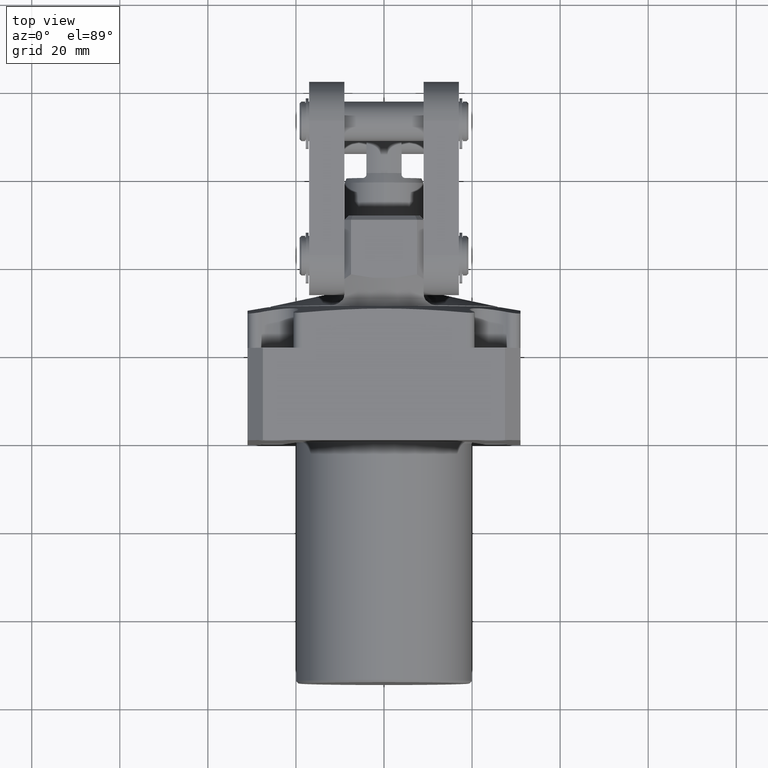
[diagram: clean part render]
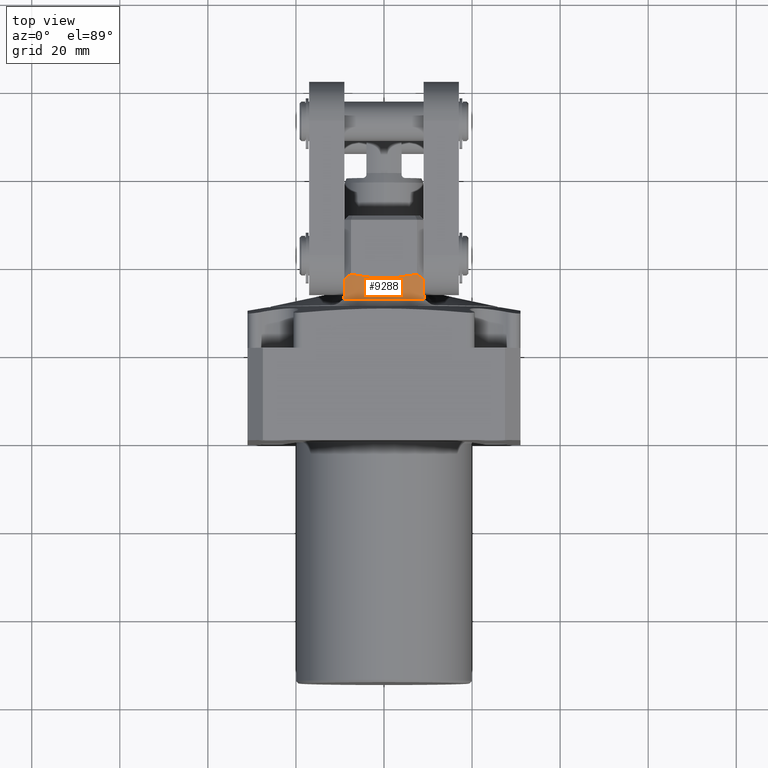
[diagram: same view with one face highlighted and labeled with its STEP entity id]
A machine part, top view. The second image highlights one B-rep face of the part: STEP entity #9288.
In plain terms, the highlighted conical surface has half-angle 45 deg.
Its self-contained STEP definition (entity closure, byte-faithful):
#5057=CARTESIAN_POINT('',(3.544999999370E-1,4.871455193238E-1,
1.029903618183E0));
#5058=CARTESIAN_POINT('',(3.544999999370E-1,5.004723802631E-1,
1.043997858545E0));
#5059=CARTESIAN_POINT('',(3.545000000294E-1,5.275508198743E-1,
1.072574211842E0));
#5060=CARTESIAN_POINT('',(3.544999999916E-1,5.694333499465E-1,
1.116597697178E0));
#5061=CARTESIAN_POINT('',(3.545E-1,5.982100944324E-1,1.146735039526E0));
#5062=CARTESIAN_POINT('',(3.545E-1,6.128107127910E-1,1.162E0));
#5294=CARTESIAN_POINT('',(-3.545E-1,6.128107127910E-1,1.162E0));
#5295=CARTESIAN_POINT('',(-3.545E-1,5.982102104873E-1,1.146735160862E0));
#5296=CARTESIAN_POINT('',(-3.544999999901E-1,5.694336207894E-1,
1.116597981134E0));
#5297=CARTESIAN_POINT('',(-3.545000000347E-1,5.275511275940E-1,
1.072574536047E0));
#5298=CARTESIAN_POINT('',(-3.544999999257E-1,5.004725120770E-1,
1.043997997952E0));
#5299=CARTESIAN_POINT('',(-3.544999999257E-1,4.871455193326E-1,
1.029903618195E0));
#5378=CARTESIAN_POINT('',(-3.555341961909E-1,4.736282998827E-1,
1.015235817623E0));
#5379=CARTESIAN_POINT('',(-3.558727443498E-1,4.704890673438E-1,
1.011791095231E0));
#5380=CARTESIAN_POINT('',(-3.567426439458E-1,4.642569812879E-1,
1.004877097140E0));
#5381=CARTESIAN_POINT('',(-3.587649059957E-1,4.550625152848E-1,
9.943893360610E-1));
#5382=CARTESIAN_POINT('',(-3.616591890265E-1,4.461265341493E-1,
9.838271866838E-1));
#5383=CARTESIAN_POINT('',(-3.642675252994E-1,4.404633963504E-1,
9.768183794224E-1));
#5384=CARTESIAN_POINT('',(-3.657833640910E-1,4.377193000900E-1,
9.733172321805E-1));
#5389=CARTESIAN_POINT('',(-2.955E-1,6.541874807765E-1,1.221E0));
#5390=CARTESIAN_POINT('',(-3.055448454646E-1,6.467872716133E-1,
1.210955154535E0));
#5391=CARTESIAN_POINT('',(-3.254239170636E-1,6.324932850560E-1,
1.191076082936E0));
#5392=CARTESIAN_POINT('',(-3.448791342181E-1,6.192055003890E-1,
1.171620865782E0));
#5393=CARTESIAN_POINT('',(-3.545E-1,6.128107127910E-1,1.162E0));
#5398=CARTESIAN_POINT('',(-2.955E-1,6.541874807765E-1,1.221E0));
#5399=CARTESIAN_POINT('',(-2.621260739113E-1,6.463371293760E-1,1.221E0));
#5400=CARTESIAN_POINT('',(-1.957550717446E-1,6.332483994708E-1,1.221E0));
#5401=CARTESIAN_POINT('',(-9.768300074565E-2,6.215467321386E-1,1.221E0));
#5402=CARTESIAN_POINT('',(2.995324843089E-7,6.176345330499E-1,1.221E0));
#5403=CARTESIAN_POINT('',(9.768282338532E-2,6.215467367419E-1,1.221E0));
#5404=CARTESIAN_POINT('',(1.957547855922E-1,6.332483494143E-1,1.221E0));
#5405=CARTESIAN_POINT('',(2.621259326578E-1,6.463370961498E-1,1.221E0));
#5406=CARTESIAN_POINT('',(2.955E-1,6.541874807765E-1,1.221E0));
#5411=CARTESIAN_POINT('',(3.545E-1,6.128107127910E-1,1.162E0));
#5412=CARTESIAN_POINT('',(3.448899374983E-1,6.191983196754E-1,
1.171610062502E0));
#5413=CARTESIAN_POINT('',(3.254453128241E-1,6.324782729312E-1,
1.191054687176E0));
#5414=CARTESIAN_POINT('',(3.055554323756E-1,6.467794720552E-1,
1.210944567624E0));
#5415=CARTESIAN_POINT('',(2.955E-1,6.541874807765E-1,1.221E0));
#5420=CARTESIAN_POINT('',(3.657833640910E-1,4.377193000900E-1,
9.733172321805E-1));
#5421=CARTESIAN_POINT('',(3.639766610414E-1,4.409899427927E-1,
9.774901913594E-1));
#5422=CARTESIAN_POINT('',(3.611257683376E-1,4.474809638998E-1,
9.854662307658E-1));
#5423=CARTESIAN_POINT('',(3.583968464379E-1,4.565324308146E-1,
9.960835708356E-1));
#5424=CARTESIAN_POINT('',(3.566070441007E-1,4.651500864317E-1,
1.005872098307E0));
#5425=CARTESIAN_POINT('',(3.558357682161E-1,4.708319334084E-1,
1.012167326809E0));
#5426=CARTESIAN_POINT('',(3.555341961780E-1,4.736283000022E-1,
1.015235817754E0));
#5431=CARTESIAN_POINT('',(0.E0,4.377193000900E-1,0.E0));
#5432=DIRECTION('',(0.E0,-1.E0,0.E0));
#5433=DIRECTION('',(3.517889533078E-1,0.E0,9.360793408310E-1));
#5434=AXIS2_PLACEMENT_3D('',#5431,#5432,#5433);
#5510=CARTESIAN_POINT('',(-3.544999999257E-1,4.871455193326E-1,
1.029903618195E0));
#5511=CARTESIAN_POINT('',(-3.545000000524E-1,4.848096577468E-1,
1.027433254365E0));
#5512=CARTESIAN_POINT('',(-3.546827137108E-1,4.802222558E-1,1.022516936554E0));
#5513=CARTESIAN_POINT('',(-3.551990626465E-1,4.757998137299E-1,
1.017654001134E0));
#5514=CARTESIAN_POINT('',(-3.555341961909E-1,4.736282998827E-1,
1.015235817623E0));
#5528=CARTESIAN_POINT('',(-3.657833640910E-1,4.377193000900E-1,
9.733172321805E-1));
#5542=CARTESIAN_POINT('',(3.657833640910E-1,4.377193000900E-1,
9.733172321805E-1));
#5613=CARTESIAN_POINT('',(3.555341961780E-1,4.736283000022E-1,
1.015235817754E0));
#5614=CARTESIAN_POINT('',(3.551930159077E-1,4.758389938706E-1,
1.017697631880E0));
#5615=CARTESIAN_POINT('',(3.546764728353E-1,4.803023234562E-1,
1.022603838337E0));
#5616=CARTESIAN_POINT('',(3.545000000492E-1,4.848502026568E-1,
1.027476133911E0));
#5617=CARTESIAN_POINT('',(3.544999999370E-1,4.871455193238E-1,
1.029903618183E0));
#8074=VERTEX_POINT('',#5411);
#8075=VERTEX_POINT('',#5415);
#8076=VERTEX_POINT('',#5389);
#8077=VERTEX_POINT('',#5393);
#8103=VERTEX_POINT('',#5057);
#8104=VERTEX_POINT('',#5299);
#8130=VERTEX_POINT('',#5542);
#8131=VERTEX_POINT('',#5426);
#8146=VERTEX_POINT('',#5528);
#8148=VERTEX_POINT('',#5378);
#9266=CARTESIAN_POINT('',(0.E0,5.459533904333E-1,0.E0));
#9267=DIRECTION('',(0.E0,1.E0,0.E0));
#9268=DIRECTION('',(0.E0,0.E0,-1.E0));
#9269=AXIS2_PLACEMENT_3D('',#9266,#9267,#9268);
#9270=CONICAL_SURFACE('',#9269,1.148014790253E0,4.5E1);
#9272=ORIENTED_EDGE('',*,*,#9271,.F.);
#9274=ORIENTED_EDGE('',*,*,#9273,.F.);
#9275=ORIENTED_EDGE('',*,*,#9198,.F.);
#9276=ORIENTED_EDGE('',*,*,#9221,.F.);
#9277=ORIENTED_EDGE('',*,*,#9260,.T.);
#9278=ORIENTED_EDGE('',*,*,#9006,.F.);
#9279=ORIENTED_EDGE('',*,*,#9029,.F.);
#9281=ORIENTED_EDGE('',*,*,#9280,.F.);
#9283=ORIENTED_EDGE('',*,*,#9282,.F.);
#9285=ORIENTED_EDGE('',*,*,#9284,.T.);
#9286=EDGE_LOOP('',(#9272,#9274,#9275,#9276,#9277,#9278,#9279,#9281,#9283,
#9285));
#9287=FACE_OUTER_BOUND('',#9286,.F.);
#5063=B_SPLINE_CURVE_WITH_KNOTS('',3,(#5057,#5058,#5059,#5060,#5061,#5062),
.UNSPECIFIED.,.F.,.F.,(4,1,1,4),(0.E0,3.333333333333E-1,6.666666666667E-1,1.E0),
.UNSPECIFIED.);
#5300=B_SPLINE_CURVE_WITH_KNOTS('',3,(#5294,#5295,#5296,#5297,#5298,#5299),
.UNSPECIFIED.,.F.,.F.,(4,1,1,4),(0.E0,3.333333333333E-1,6.666666666667E-1,1.E0),
.UNSPECIFIED.);
#5385=B_SPLINE_CURVE_WITH_KNOTS('',3,(#5378,#5379,#5380,#5381,#5382,#5383,
#5384),.UNSPECIFIED.,.F.,.F.,(4,1,1,1,4),(0.E0,2.5E-1,5.E-1,7.5E-1,1.E0),
.UNSPECIFIED.);
#5394=B_SPLINE_CURVE_WITH_KNOTS('',3,(#5389,#5390,#5391,#5392,#5393),
.UNSPECIFIED.,.F.,.F.,(4,1,4),(0.E0,5.E-1,1.E0),.UNSPECIFIED.);
#5407=B_SPLINE_CURVE_WITH_KNOTS('',3,(#5398,#5399,#5400,#5401,#5402,#5403,#5404,
#5405,#5406),.UNSPECIFIED.,.F.,.F.,(4,1,1,1,1,1,4),(0.E0,1.666666666667E-1,
3.333333333333E-1,5.E-1,6.666666666667E-1,8.333333333333E-1,1.E0),
.UNSPECIFIED.);
#5416=B_SPLINE_CURVE_WITH_KNOTS('',3,(#5411,#5412,#5413,#5414,#5415),
.UNSPECIFIED.,.F.,.F.,(4,1,4),(0.E0,5.E-1,1.E0),.UNSPECIFIED.);
#5427=B_SPLINE_CURVE_WITH_KNOTS('',3,(#5420,#5421,#5422,#5423,#5424,#5425,
#5426),.UNSPECIFIED.,.F.,.F.,(4,1,1,1,4),(0.E0,2.5E-1,5.E-1,7.5E-1,1.E0),
.UNSPECIFIED.);
#5435=CIRCLE('',#5434,1.039780699910E0);
#5515=B_SPLINE_CURVE_WITH_KNOTS('',3,(#5510,#5511,#5512,#5513,#5514),
.UNSPECIFIED.,.F.,.F.,(4,1,4),(0.E0,5.E-1,1.E0),.UNSPECIFIED.);
#5618=B_SPLINE_CURVE_WITH_KNOTS('',3,(#5613,#5614,#5615,#5616,#5617),
.UNSPECIFIED.,.F.,.F.,(4,1,4),(0.E0,5.E-1,1.E0),.UNSPECIFIED.);
#9006=EDGE_CURVE('',#8074,#8075,#5416,.T.);
#9029=EDGE_CURVE('',#8103,#8074,#5063,.T.);
#9198=EDGE_CURVE('',#8077,#8104,#5300,.T.);
#9221=EDGE_CURVE('',#8076,#8077,#5394,.T.);
#9260=EDGE_CURVE('',#8076,#8075,#5407,.T.);
#9271=EDGE_CURVE('',#8148,#8146,#5385,.T.);
#9273=EDGE_CURVE('',#8104,#8148,#5515,.T.);
#9280=EDGE_CURVE('',#8131,#8103,#5618,.T.);
#9282=EDGE_CURVE('',#8130,#8131,#5427,.T.);
#9284=EDGE_CURVE('',#8130,#8146,#5435,.T.);
#9288=ADVANCED_FACE('',(#9287),#9270,.T.);